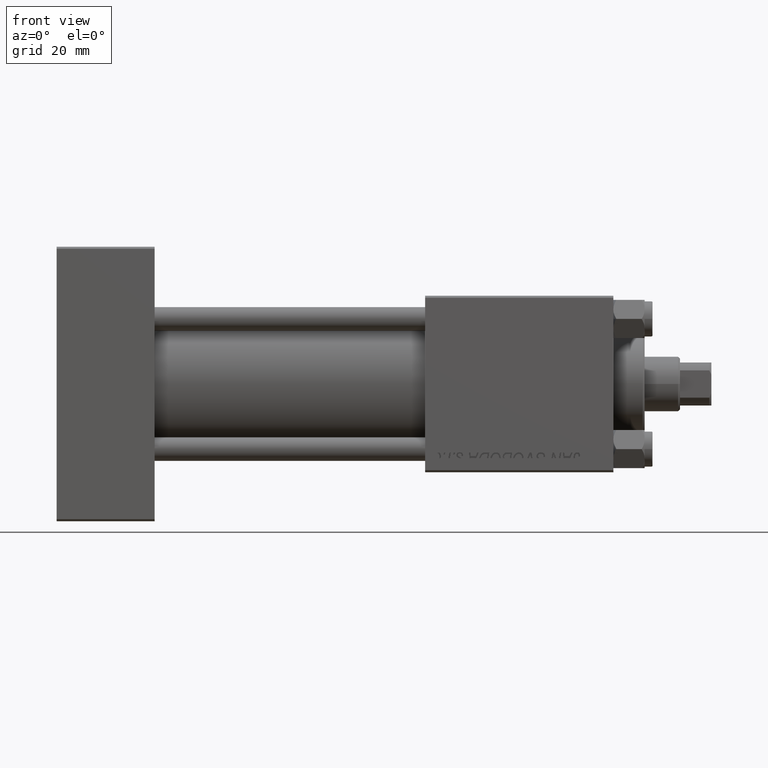
[diagram: clean part render]
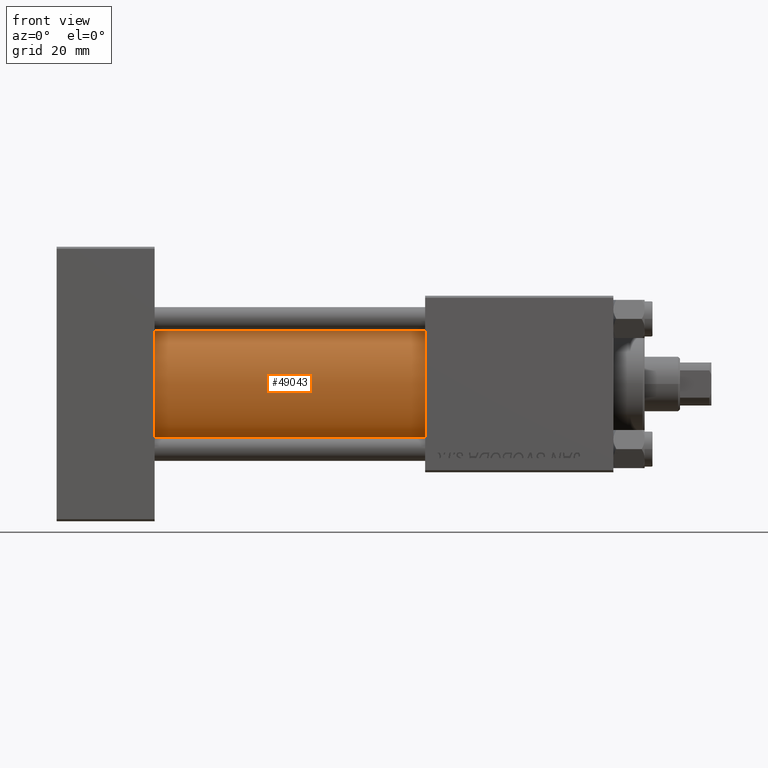
[diagram: same view with one face highlighted and labeled with its STEP entity id]
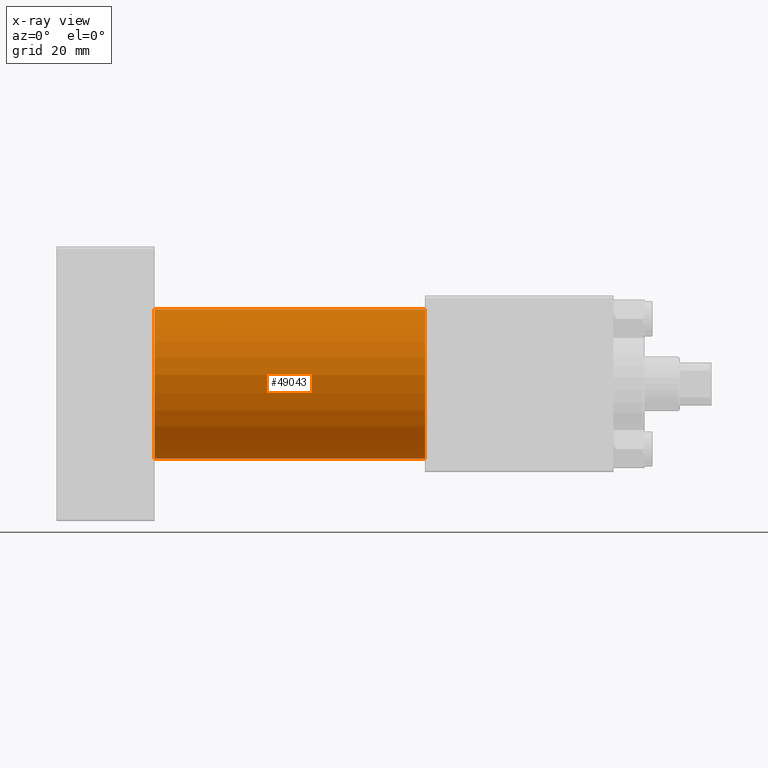
[diagram: x-ray of the same camera — body ghosted, the highlighted face saturated]
A machine part, front view. The second image highlights one B-rep face of the part: STEP entity #49043.
The next image is the same camera in x-ray: the body ghosted, the highlighted face saturated — about 0% of this face is hidden behind the body in this view.
In plain terms, the highlighted cylindrical surface (partial cylindrical patch) has radius 19 mm, axis along (-1, -0, -0).
Its self-contained STEP definition (entity closure, byte-faithful):
#20 = FACE_OUTER_BOUND ( 'NONE', #25620, .T. ) ;
#4043 = DIRECTION ( 'NONE',  ( 1.000000000000000000, -0.000000000000000000, 0.000000000000000000 ) ) ;
#4935 = CARTESIAN_POINT ( 'NONE',  ( 24.99999999999999289, -2.602085213965210642E-15, 19.00000000000000000 ) ) ;
#5514 = EDGE_CURVE ( 'NONE', #33332, #17209, #49768, .T. ) ;
#5956 = CARTESIAN_POINT ( 'NONE',  ( 94.00000000000000000, -2.602085213965210642E-15, 19.00000000000000000 ) ) ;
#11606 = DIRECTION ( 'NONE',  ( -1.000000000000000000, -0.000000000000000000, -0.000000000000000000 ) ) ;
#15639 = DIRECTION ( 'NONE',  ( 0.000000000000000000, 0.000000000000000000, 1.000000000000000000 ) ) ;
#16740 = AXIS2_PLACEMENT_3D ( 'NONE', #40651, #18156, #44458 ) ;
#16876 = ORIENTED_EDGE ( 'NONE', *, *, #46677, .T. ) ;
#17209 = VERTEX_POINT ( 'NONE', #30233 ) ;
#17823 = DIRECTION ( 'NONE',  ( -1.000000000000000000, -0.000000000000000000, -0.000000000000000000 ) ) ;
#18156 = DIRECTION ( 'NONE',  ( 1.000000000000000000, 0.000000000000000000, 0.000000000000000000 ) ) ;
#20113 = CARTESIAN_POINT ( 'NONE',  ( 94.00000000000000000, -2.752562955852396712E-16, -19.00000000000000000 ) ) ;
#21725 = CIRCLE ( 'NONE', #24175, 19.00000000000000000 ) ;
#22497 = CARTESIAN_POINT ( 'NONE',  ( 94.00000000000000000, -2.602085213965210642E-15, 19.00000000000000000 ) ) ;
#24175 = AXIS2_PLACEMENT_3D ( 'NONE', #46987, #4043, #15639 ) ;
#24731 = ORIENTED_EDGE ( 'NONE', *, *, #38627, .T. ) ;
#25620 = EDGE_LOOP ( 'NONE', ( #42088, #34866, #16876, #24731 ) ) ;
#26257 = VECTOR ( 'NONE', #37395, 1000.000000000000000 ) ;
#26453 = CIRCLE ( 'NONE', #16740, 19.00000000000000000 ) ;
#26777 = CARTESIAN_POINT ( 'NONE',  ( 94.00000000000000000, -2.602085213965210642E-15, 0.000000000000000000 ) ) ;
#30233 = CARTESIAN_POINT ( 'NONE',  ( 24.99999999999999289, -2.752562955852396712E-16, -19.00000000000000000 ) ) ;
#30298 = CARTESIAN_POINT ( 'NONE',  ( 94.00000000000000000, -2.752562955852396712E-16, -19.00000000000000000 ) ) ;
#33313 = VECTOR ( 'NONE', #17823, 1000.000000000000000 ) ;
#33332 = VERTEX_POINT ( 'NONE', #20113 ) ;
#34115 = DIRECTION ( 'NONE',  ( 0.000000000000000000, 0.000000000000000000, 1.000000000000000000 ) ) ;
#34483 = EDGE_CURVE ( 'NONE', #40777, #33332, #26453, .T. ) ;
#34866 = ORIENTED_EDGE ( 'NONE', *, *, #34483, .F. ) ;
#37036 = LINE ( 'NONE', #5956, #33313 ) ;
#37227 = AXIS2_PLACEMENT_3D ( 'NONE', #26777, #11606, #34115 ) ;
#37395 = DIRECTION ( 'NONE',  ( -1.000000000000000000, -0.000000000000000000, -0.000000000000000000 ) ) ;
#38390 = CYLINDRICAL_SURFACE ( 'NONE', #37227, 19.00000000000000000 ) ;
#38627 = EDGE_CURVE ( 'NONE', #44087, #17209, #21725, .T. ) ;
#40651 = CARTESIAN_POINT ( 'NONE',  ( 94.00000000000000000, -2.602085213965210642E-15, 0.000000000000000000 ) ) ;
#40777 = VERTEX_POINT ( 'NONE', #22497 ) ;
#42088 = ORIENTED_EDGE ( 'NONE', *, *, #5514, .F. ) ;
#44087 = VERTEX_POINT ( 'NONE', #4935 ) ;
#44458 = DIRECTION ( 'NONE',  ( 0.000000000000000000, 0.000000000000000000, -1.000000000000000000 ) ) ;
#46677 = EDGE_CURVE ( 'NONE', #40777, #44087, #37036, .T. ) ;
#46987 = CARTESIAN_POINT ( 'NONE',  ( 24.99999999999999289, -2.602085213965210642E-15, 0.000000000000000000 ) ) ;
#49043 = ADVANCED_FACE ( 'NONE', ( #20 ), #38390, .T. ) ;
#49768 = LINE ( 'NONE', #30298, #26257 ) ;